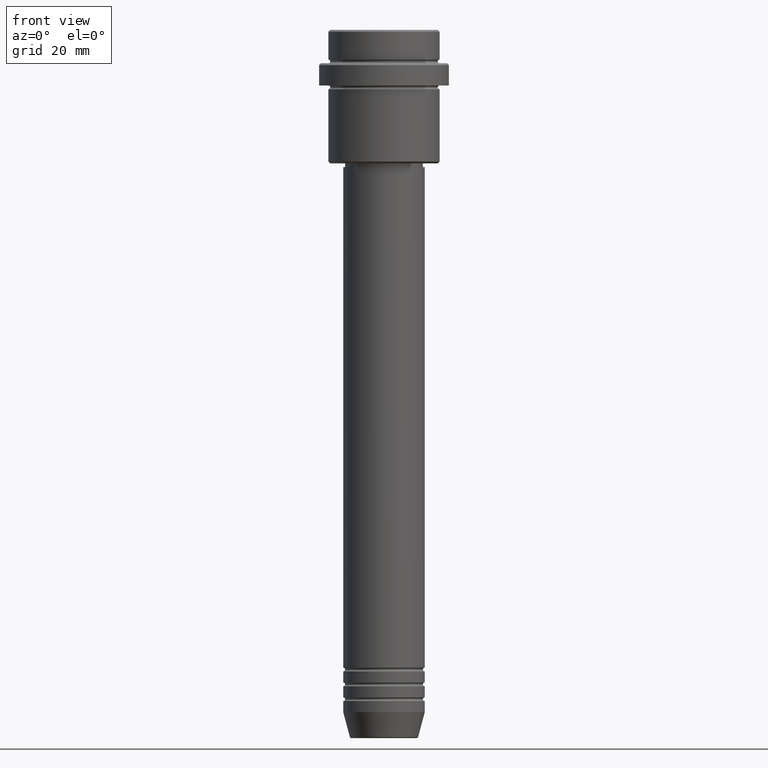
[diagram: clean part render]
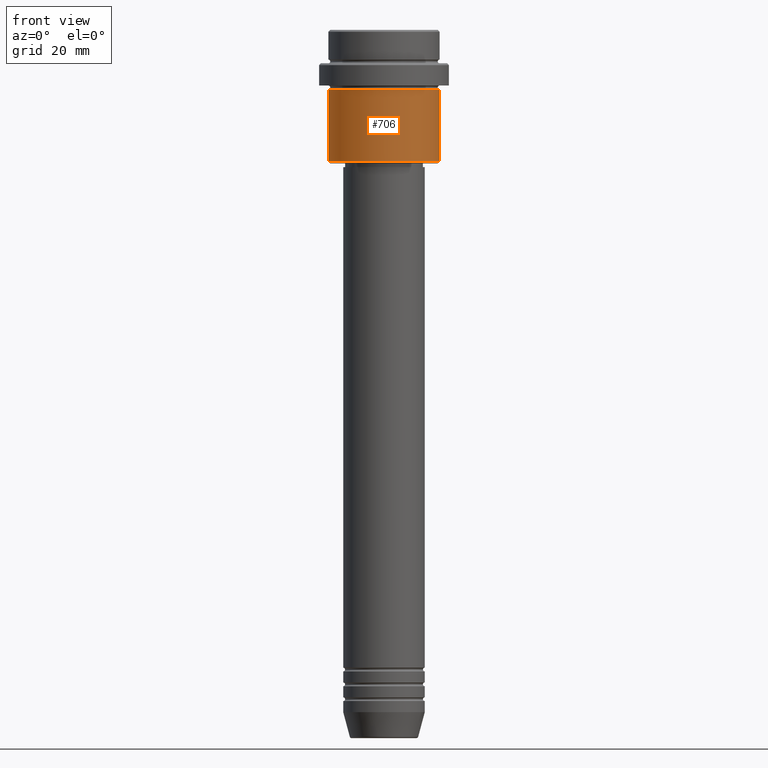
[diagram: same view with one face highlighted and labeled with its STEP entity id]
A machine part, front view. The second image highlights one B-rep face of the part: STEP entity #706.
In plain terms, the highlighted cylindrical surface (partial cylindrical patch) has radius 15 mm, axis along (-0, -0, 1).
Its self-contained STEP definition (entity closure, byte-faithful):
#16 = ORIENTED_EDGE ( 'NONE', *, *, #720, .T. ) ;
#53 = EDGE_CURVE ( 'NONE', #113, #968, #240, .T. ) ;
#113 = VERTEX_POINT ( 'NONE', #325 ) ;
#135 = VERTEX_POINT ( 'NONE', #1198 ) ;
#185 = LINE ( 'NONE', #1164, #879 ) ;
#201 = CARTESIAN_POINT ( 'NONE',  ( 15.00000000000000000, 0.000000000000000000, 0.000000000000000000 ) ) ;
#240 = CIRCLE ( 'NONE', #1352, 15.00000000000000000 ) ;
#279 = CYLINDRICAL_SURFACE ( 'NONE', #1054, 15.00000000000000000 ) ;
#325 = CARTESIAN_POINT ( 'NONE',  ( -15.00000000000000000, 1.836970198721029589E-15, -35.50000000000002132 ) ) ;
#384 = VERTEX_POINT ( 'NONE', #505 ) ;
#402 = DIRECTION ( 'NONE',  ( 1.000000000000000000, 0.000000000000000000, 0.000000000000000000 ) ) ;
#444 = DIRECTION ( 'NONE',  ( 1.000000000000000000, 0.000000000000000000, 0.000000000000000000 ) ) ;
#505 = CARTESIAN_POINT ( 'NONE',  ( -15.00000000000000355, 1.836970198721029983E-15, -16.00000000000000000 ) ) ;
#551 = CARTESIAN_POINT ( 'NONE',  ( 0.000000000000000000, 0.000000000000000000, -16.00000000000000000 ) ) ;
#579 = CARTESIAN_POINT ( 'NONE',  ( 15.00000000000000000, 0.000000000000000000, -35.50000000000002132 ) ) ;
#637 = DIRECTION ( 'NONE',  ( -0.000000000000000000, -0.000000000000000000, 1.000000000000000000 ) ) ;
#706 = ADVANCED_FACE ( 'NONE', ( #746 ), #279, .T. ) ;
#720 = EDGE_CURVE ( 'NONE', #968, #135, #1175, .T. ) ;
#725 = DIRECTION ( 'NONE',  ( -0.000000000000000000, -0.000000000000000000, 1.000000000000000000 ) ) ;
#732 = EDGE_CURVE ( 'NONE', #113, #384, #185, .T. ) ;
#740 = CARTESIAN_POINT ( 'NONE',  ( 0.000000000000000000, 0.000000000000000000, -35.50000000000002132 ) ) ;
#746 = FACE_OUTER_BOUND ( 'NONE', #1315, .T. ) ;
#769 = ORIENTED_EDGE ( 'NONE', *, *, #1368, .F. ) ;
#791 = CIRCLE ( 'NONE', #1263, 15.00000000000000178 ) ;
#879 = VECTOR ( 'NONE', #725, 1000.000000000000000 ) ;
#919 = VECTOR ( 'NONE', #637, 1000.000000000000000 ) ;
#968 = VERTEX_POINT ( 'NONE', #579 ) ;
#981 = DIRECTION ( 'NONE',  ( -0.000000000000000000, -0.000000000000000000, 1.000000000000000000 ) ) ;
#1054 = AXIS2_PLACEMENT_3D ( 'NONE', #1268, #1379, #402 ) ;
#1074 = ORIENTED_EDGE ( 'NONE', *, *, #53, .T. ) ;
#1164 = CARTESIAN_POINT ( 'NONE',  ( -15.00000000000000000, 1.836970198721029589E-15, 0.000000000000000000 ) ) ;
#1170 = DIRECTION ( 'NONE',  ( -1.000000000000000000, 0.000000000000000000, 0.000000000000000000 ) ) ;
#1175 = LINE ( 'NONE', #201, #919 ) ;
#1198 = CARTESIAN_POINT ( 'NONE',  ( 15.00000000000000178, 0.000000000000000000, -16.00000000000000000 ) ) ;
#1202 = ORIENTED_EDGE ( 'NONE', *, *, #732, .F. ) ;
#1263 = AXIS2_PLACEMENT_3D ( 'NONE', #551, #981, #444 ) ;
#1268 = CARTESIAN_POINT ( 'NONE',  ( 0.000000000000000000, 0.000000000000000000, 0.000000000000000000 ) ) ;
#1315 = EDGE_LOOP ( 'NONE', ( #1202, #1074, #16, #769 ) ) ;
#1352 = AXIS2_PLACEMENT_3D ( 'NONE', #740, #1390, #1170 ) ;
#1368 = EDGE_CURVE ( 'NONE', #384, #135, #791, .T. ) ;
#1379 = DIRECTION ( 'NONE',  ( -0.000000000000000000, -0.000000000000000000, 1.000000000000000000 ) ) ;
#1390 = DIRECTION ( 'NONE',  ( -0.000000000000000000, -0.000000000000000000, 1.000000000000000000 ) ) ;